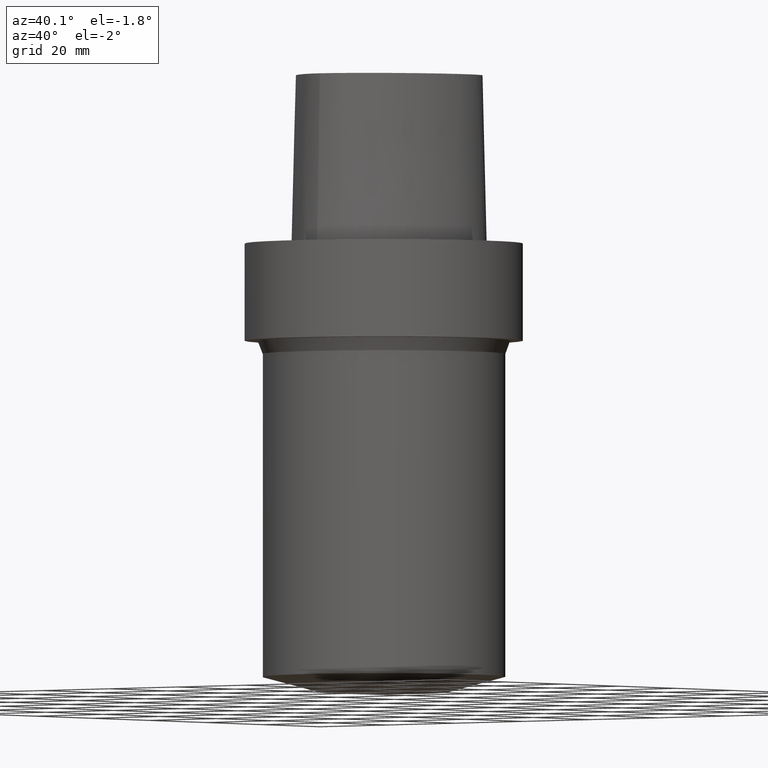
[diagram: clean part render]
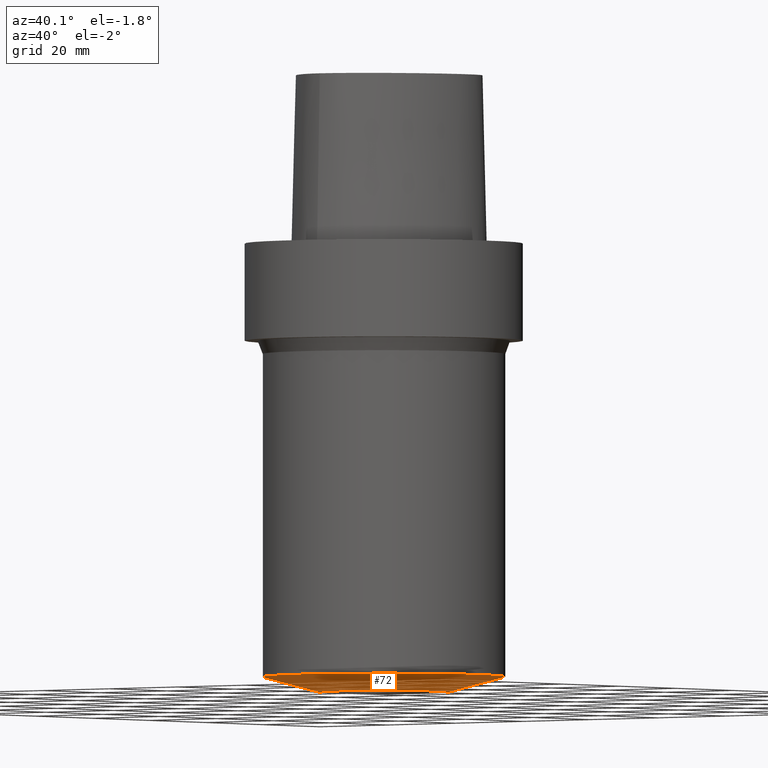
[diagram: same view with one face highlighted and labeled with its STEP entity id]
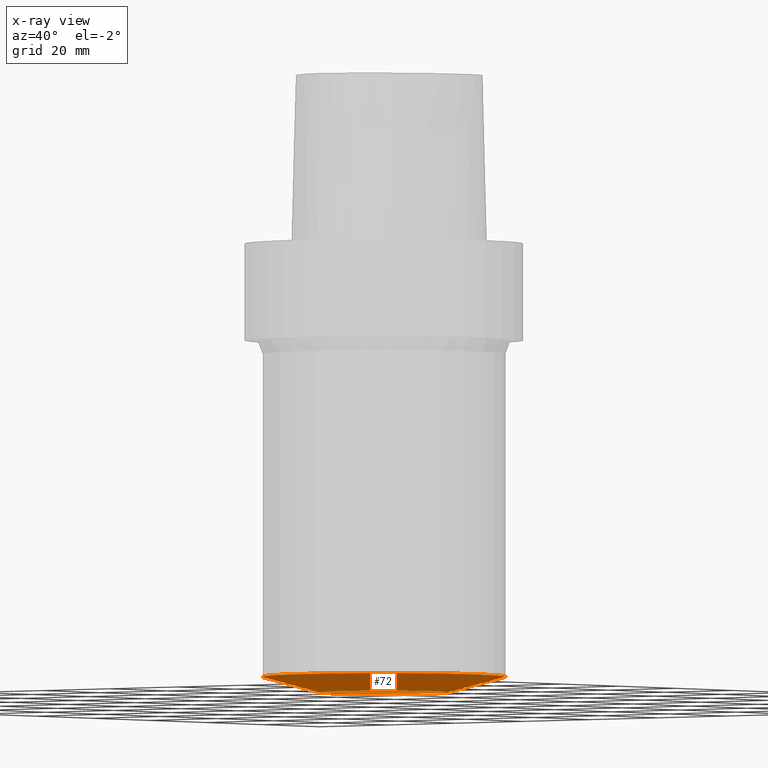
[diagram: x-ray of the same camera — body ghosted, the highlighted face saturated]
A machine part, auxiliary view. The second image highlights one B-rep face of the part: STEP entity #72.
The next image is the same camera in x-ray: the body ghosted, the highlighted face saturated — about 4% of this face is hidden behind the body in this view.
In plain terms, the highlighted conical surface has half-angle 75 deg.
Its self-contained STEP definition (entity closure, byte-faithful):
#72=ADVANCED_FACE('Unnamed[1]',(#165,#166),#167,.T.);
#87=EDGE_CURVE('Unnamed[1]',#187,#187,#188,.T.);
#112=EDGE_CURVE('Unnamed[1]',#219,#219,#220,.T.);
#165=FACE_BOUND('',#274,.T.);
#166=FACE_BOUND('',#275,.T.);
#167=CONICAL_SURFACE('',#276,20.9999999999664,1.30899693899575);
#187=VERTEX_POINT('',#372);
#188=CIRCLE('',#373,14.5000000000006);
#219=VERTEX_POINT('',#546);
#220=CIRCLE('',#547,27.4999999999323);
#274=EDGE_LOOP('',(#588));
#275=EDGE_LOOP('',(#589));
#276=AXIS2_PLACEMENT_3D('',#590,#591,#592);
#372=CARTESIAN_POINT('',(6.22120573966855E-015,14.5000000000008,-101.6));
#373=AXIS2_PLACEMENT_3D('',#611,#612,#613);
#546=CARTESIAN_POINT('',(6.00791271112049E-015,27.4999999999325,-98.1166604984137));
#547=AXIS2_PLACEMENT_3D('',#637,#638,#639);
#588=ORIENTED_EDGE('',*,*,#87,.F.);
#589=ORIENTED_EDGE('',*,*,#112,.T.);
#590=CARTESIAN_POINT('',(6.11455922539452E-015,1.82729118450789E-013,-99.8583302492068));
#591=DIRECTION('',(-6.12323399573677E-017,-1.22464679914735E-016,1.0));
#592=DIRECTION('',(-1.23259516440783E-032,1.0,1.22464679914735E-016));
#611=CARTESIAN_POINT('',(6.22120573966855E-015,1.82942411479337E-013,-101.6));
#612=DIRECTION('',(6.12323399573677E-017,1.22464679914735E-016,-1.0));
#613=DIRECTION('',(-1.23259516440783E-032,1.0,1.22464679914735E-016));
#637=CARTESIAN_POINT('',(6.00791271112049E-015,1.82515825422241E-013,-98.1166604984137));
#638=DIRECTION('',(6.12323399573677E-017,1.22464679914735E-016,-1.0));
#639=DIRECTION('',(-1.23259516440783E-032,1.0,1.22464679914735E-016));